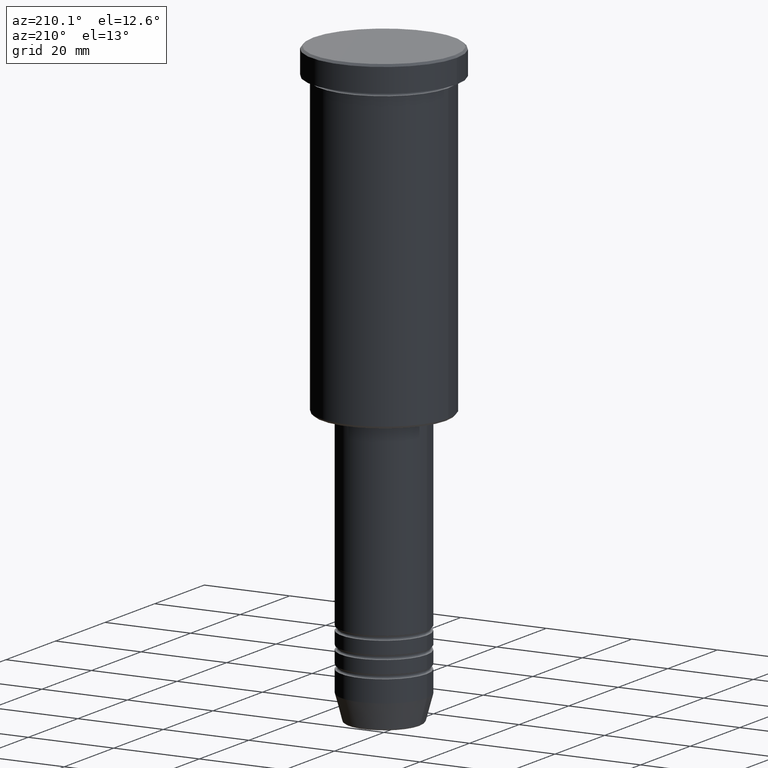
[diagram: clean part render]
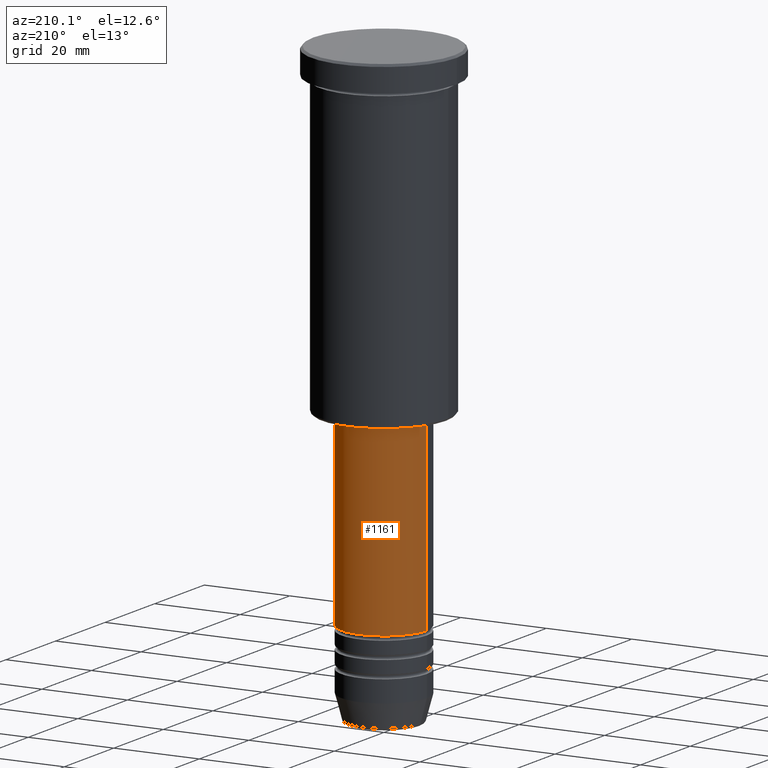
[diagram: same view with one face highlighted and labeled with its STEP entity id]
A machine part, auxiliary view. The second image highlights one B-rep face of the part: STEP entity #1161.
In plain terms, the highlighted cylindrical surface (partial cylindrical patch) has radius 10 mm, axis along (-0, -0, 1).
Its self-contained STEP definition (entity closure, byte-faithful):
#64 = VERTEX_POINT ( 'NONE', #800 ) ;
#99 = CARTESIAN_POINT ( 'NONE',  ( -10.00000000000000000, 1.224646799147353256E-15, 0.000000000000000000 ) ) ;
#115 = LINE ( 'NONE', #688, #1099 ) ;
#181 = CYLINDRICAL_SURFACE ( 'NONE', #686, 10.00000000000000000 ) ;
#275 = VERTEX_POINT ( 'NONE', #752 ) ;
#279 = CARTESIAN_POINT ( 'NONE',  ( 0.000000000000000000, 0.000000000000000000, 0.000000000000000000 ) ) ;
#323 = VERTEX_POINT ( 'NONE', #1180 ) ;
#325 = EDGE_LOOP ( 'NONE', ( #722, #569, #603, #792 ) ) ;
#354 = FACE_OUTER_BOUND ( 'NONE', #325, .T. ) ;
#383 = AXIS2_PLACEMENT_3D ( 'NONE', #513, #435, #1050 ) ;
#396 = EDGE_CURVE ( 'NONE', #64, #1060, #516, .T. ) ;
#435 = DIRECTION ( 'NONE',  ( -0.000000000000000000, -0.000000000000000000, 1.000000000000000000 ) ) ;
#459 = EDGE_CURVE ( 'NONE', #323, #1060, #560, .T. ) ;
#468 = DIRECTION ( 'NONE',  ( -0.000000000000000000, -0.000000000000000000, 1.000000000000000000 ) ) ;
#513 = CARTESIAN_POINT ( 'NONE',  ( 0.000000000000000000, 0.000000000000000000, -77.00000000000004263 ) ) ;
#516 = CIRCLE ( 'NONE', #383, 9.999999999999998224 ) ;
#555 = DIRECTION ( 'NONE',  ( 1.000000000000000000, 0.000000000000000000, 0.000000000000000000 ) ) ;
#560 = LINE ( 'NONE', #99, #1138 ) ;
#569 = ORIENTED_EDGE ( 'NONE', *, *, #459, .T. ) ;
#603 = ORIENTED_EDGE ( 'NONE', *, *, #396, .F. ) ;
#658 = DIRECTION ( 'NONE',  ( -0.000000000000000000, -0.000000000000000000, 1.000000000000000000 ) ) ;
#686 = AXIS2_PLACEMENT_3D ( 'NONE', #279, #658, #901 ) ;
#688 = CARTESIAN_POINT ( 'NONE',  ( 10.00000000000000000, 0.000000000000000000, 0.000000000000000000 ) ) ;
#722 = ORIENTED_EDGE ( 'NONE', *, *, #1153, .T. ) ;
#752 = CARTESIAN_POINT ( 'NONE',  ( 10.00000000000000178, 0.000000000000000000, -120.0000000000000000 ) ) ;
#766 = DIRECTION ( 'NONE',  ( -0.000000000000000000, -0.000000000000000000, 1.000000000000000000 ) ) ;
#792 = ORIENTED_EDGE ( 'NONE', *, *, #809, .F. ) ;
#800 = CARTESIAN_POINT ( 'NONE',  ( 9.999999999999998224, 0.000000000000000000, -77.00000000000004263 ) ) ;
#809 = EDGE_CURVE ( 'NONE', #275, #64, #115, .T. ) ;
#810 = DIRECTION ( 'NONE',  ( -0.000000000000000000, -0.000000000000000000, 1.000000000000000000 ) ) ;
#884 = CARTESIAN_POINT ( 'NONE',  ( -9.999999999999998224, 1.224646799147353256E-15, -77.00000000000004263 ) ) ;
#901 = DIRECTION ( 'NONE',  ( 1.000000000000000000, 0.000000000000000000, 0.000000000000000000 ) ) ;
#1046 = CIRCLE ( 'NONE', #1181, 10.00000000000000178 ) ;
#1050 = DIRECTION ( 'NONE',  ( 1.000000000000000000, 0.000000000000000000, 0.000000000000000000 ) ) ;
#1060 = VERTEX_POINT ( 'NONE', #884 ) ;
#1067 = CARTESIAN_POINT ( 'NONE',  ( 0.000000000000000000, 0.000000000000000000, -120.0000000000000000 ) ) ;
#1099 = VECTOR ( 'NONE', #766, 1000.000000000000000 ) ;
#1138 = VECTOR ( 'NONE', #468, 1000.000000000000000 ) ;
#1153 = EDGE_CURVE ( 'NONE', #275, #323, #1046, .T. ) ;
#1161 = ADVANCED_FACE ( 'NONE', ( #354 ), #181, .T. ) ;
#1180 = CARTESIAN_POINT ( 'NONE',  ( -10.00000000000000178, 1.224646799147353454E-15, -120.0000000000000000 ) ) ;
#1181 = AXIS2_PLACEMENT_3D ( 'NONE', #1067, #810, #555 ) ;